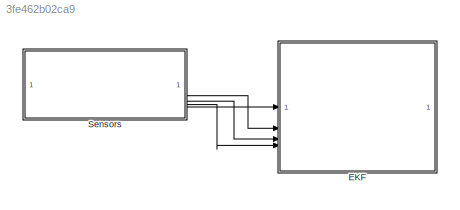
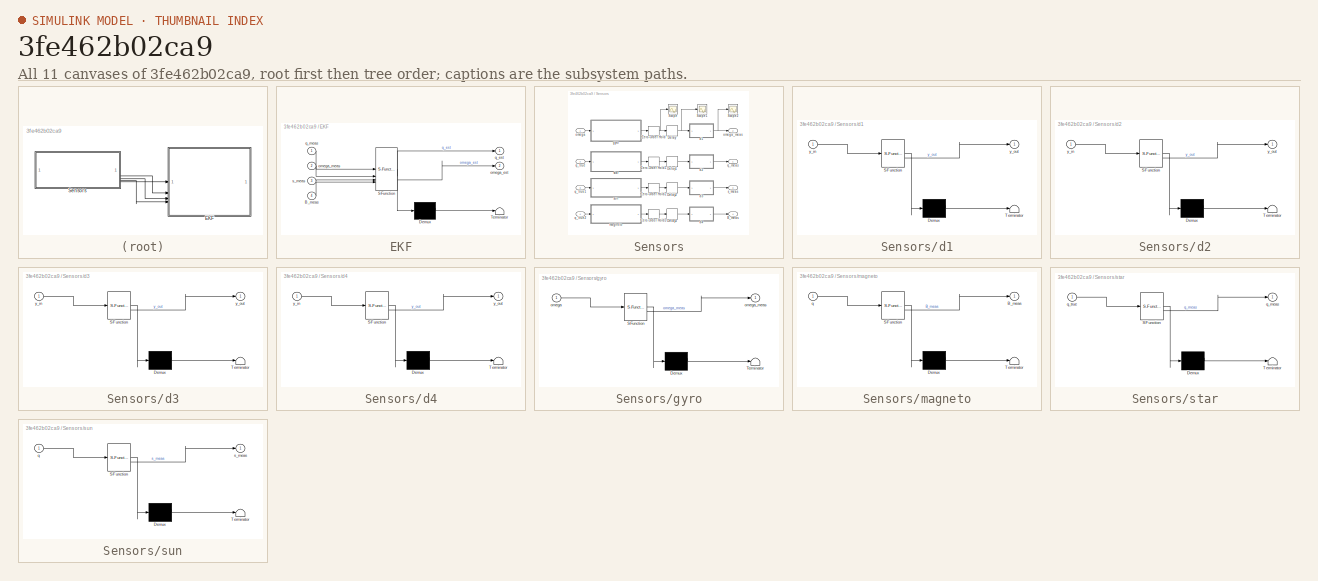
[diagram: thumbnail index - all 11 canvases of the model, root first then tree order]
MODEL slx_3fe462b02ca9
KIND model
CONFIG AbsTol = auto
CONFIG EnableMultiTasking = off
CONFIG FixedStep = auto
CONFIG MaxStep = auto
CONFIG MinStep = auto
CONFIG RelTol = 1e-3
CONFIG SampleTimeConstraint = Unconstrained
CONFIG SolverName = VariableStepAuto
CONFIG StartTime = 0.0
CONFIG StopTime = 10.0
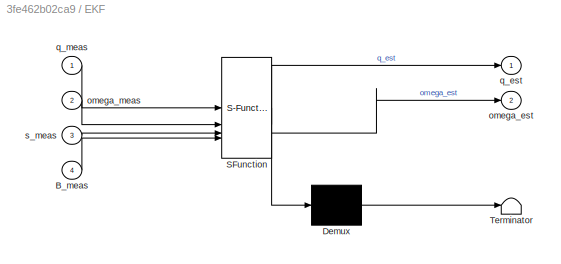
BLOCK [SubSystem] EKF
  ErrorFcn = Stateflow.Translate.translate
  PermitHierarchicalResolution = ExplicitOnly
  SFBlockType = MATLAB Function
  TreatAsAtomicUnit = on
BLOCK [Demux] EKF/ Demux 
  Outputs = 1
BLOCK [S-Function] EKF/ SFunction 
  EnableBusSupport = on
  FunctionName = sf_sfun
  PortCounts = [4 3]
  SFcnIsStateOwnerBlock = off
  SFunctionDeploymentMode = off
  Tag = Stateflow S-Function 13
BLOCK [Terminator] EKF/ Terminator 
BLOCK [Inport] EKF/B_meas
  Port = 4
BLOCK [Outport] EKF/omega_est
  Port = 2
BLOCK [Inport] EKF/omega_meas
  Port = 2
BLOCK [Outport] EKF/q_est
BLOCK [Inport] EKF/q_meas
BLOCK [Inport] EKF/s_meas
  Port = 3
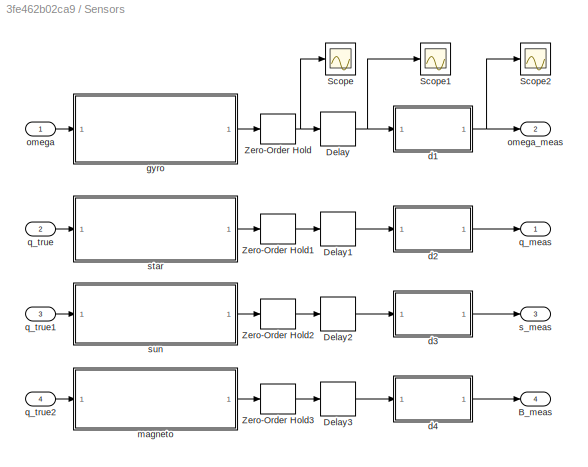
BLOCK [SubSystem] Sensors
BLOCK [Outport] Sensors/B_meas
  Port = 4
BLOCK [Delay] Sensors/Delay
  DelayLength = 1
  InitialCondition = 0
  InputPortMap = u0
  SampleTime = 0.05
BLOCK [Delay] Sensors/Delay1
  DelayLength = 1
  InitialCondition = 0
  InputPortMap = u0
  SampleTime = 0.05
BLOCK [Delay] Sensors/Delay2
  DelayLength = 1
  InitialCondition = 0
  InputPortMap = u0
  SampleTime = 0.05
BLOCK [Delay] Sensors/Delay3
  DelayLength = 1
  InitialCondition = 0
  InputPortMap = u0
  SampleTime = 0.05
BLOCK [Scope] Sensors/Scope
  Floating = off
  NumInputPorts = 1
  ScopeSpecificationString = Simulink.scopes.TimeScopeBlockCfg('CurrentConfiguration', extmgr.ConfigurationSet(extmgr.Configuration('Core','General UI',true),extmgr.Configuration('Core','Source UI',true),extmgr.Configuration('Sources','WiredSimulink',true,'DataLoggingVariableName','ScopeData8'),extmgr.Configuration('Visuals','Time Domain',true,'SerializedDisplays',{struct('MinYLimReal','-239897.09702','MaxYLimReal','26655.305...<+1494ch>
BLOCK [Scope] Sensors/Scope1
  Floating = off
  NumInputPorts = 1
  ScopeSpecificationString = Simulink.scopes.TimeScopeBlockCfg('CurrentConfiguration', extmgr.ConfigurationSet(extmgr.Configuration('Core','General UI',true),extmgr.Configuration('Core','Source UI',true),extmgr.Configuration('Sources','WiredSimulink',true,'DataLoggingVariableName','ScopeData9'),extmgr.Configuration('Visuals','Time Domain',true,'SerializedDisplays',{struct('MinYLimReal','-239897.09702','MaxYLimReal','26655.305...<+1499ch>
BLOCK [Scope] Sensors/Scope2
  Floating = off
  NumInputPorts = 1
  ScopeSpecificationString = Simulink.scopes.TimeScopeBlockCfg('CurrentConfiguration', extmgr.ConfigurationSet(extmgr.Configuration('Core','General UI',true),extmgr.Configuration('Core','Source UI',true),extmgr.Configuration('Sources','WiredSimulink',true,'DataLoggingVariableName','ScopeData10'),extmgr.Configuration('Visuals','Time Domain',true,'SerializedDisplays',{struct('MinYLimReal','-239897.09702','MaxYLimReal','26655.30...<+1456ch>
BLOCK [ZeroOrderHold] Sensors/Zero-Order Hold
  SampleTime = 0.1
BLOCK [ZeroOrderHold] Sensors/Zero-Order Hold1
  SampleTime = -1
BLOCK [ZeroOrderHold] Sensors/Zero-Order Hold2
  SampleTime = -1
BLOCK [ZeroOrderHold] Sensors/Zero-Order Hold3
  SampleTime = -1
BLOCK [SubSystem] Sensors/d1
  ErrorFcn = Stateflow.Translate.translate
  PermitHierarchicalResolution = ExplicitOnly
  SFBlockType = MATLAB Function
  TreatAsAtomicUnit = on
BLOCK [Demux] Sensors/d1/ Demux 
  Outputs = 1
BLOCK [S-Function] Sensors/d1/ SFunction 
  EnableBusSupport = on
  FunctionName = sf_sfun
  PortCounts = [1 2]
  SFcnIsStateOwnerBlock = off
  SFunctionDeploymentMode = off
  Tag = Stateflow S-Function 9
BLOCK [Terminator] Sensors/d1/ Terminator 
BLOCK [Inport] Sensors/d1/y_in
BLOCK [Outport] Sensors/d1/y_out
BLOCK [SubSystem] Sensors/d2
  ErrorFcn = Stateflow.Translate.translate
  PermitHierarchicalResolution = ExplicitOnly
  SFBlockType = MATLAB Function
  TreatAsAtomicUnit = on
BLOCK [Demux] Sensors/d2/ Demux 
  Outputs = 1
BLOCK [S-Function] Sensors/d2/ SFunction 
  EnableBusSupport = on
  FunctionName = sf_sfun
  PortCounts = [1 2]
  SFcnIsStateOwnerBlock = off
  SFunctionDeploymentMode = off
  Tag = Stateflow S-Function 10
BLOCK [Terminator] Sensors/d2/ Terminator 
BLOCK [Inport] Sensors/d2/y_in
BLOCK [Outport] Sensors/d2/y_out
BLOCK [SubSystem] Sensors/d3
  ErrorFcn = Stateflow.Translate.translate
  PermitHierarchicalResolution = ExplicitOnly
  SFBlockType = MATLAB Function
  TreatAsAtomicUnit = on
BLOCK [Demux] Sensors/d3/ Demux 
  Outputs = 1
BLOCK [S-Function] Sensors/d3/ SFunction 
  EnableBusSupport = on
  FunctionName = sf_sfun
  PortCounts = [1 2]
  SFcnIsStateOwnerBlock = off
  SFunctionDeploymentMode = off
  Tag = Stateflow S-Function 14
BLOCK [Terminator] Sensors/d3/ Terminator 
BLOCK [Inport] Sensors/d3/y_in
BLOCK [Outport] Sensors/d3/y_out
BLOCK [SubSystem] Sensors/d4
  ErrorFcn = Stateflow.Translate.translate
  PermitHierarchicalResolution = ExplicitOnly
  SFBlockType = MATLAB Function
  TreatAsAtomicUnit = on
BLOCK [Demux] Sensors/d4/ Demux 
  Outputs = 1
BLOCK [S-Function] Sensors/d4/ SFunction 
  EnableBusSupport = on
  FunctionName = sf_sfun
  PortCounts = [1 2]
  SFcnIsStateOwnerBlock = off
  SFunctionDeploymentMode = off
  Tag = Stateflow S-Function 15
BLOCK [Terminator] Sensors/d4/ Terminator 
BLOCK [Inport] Sensors/d4/y_in
BLOCK [Outport] Sensors/d4/y_out
BLOCK [SubSystem] Sensors/gyro
  ErrorFcn = Stateflow.Translate.translate
  PermitHierarchicalResolution = ExplicitOnly
  SFBlockType = MATLAB Function
  TreatAsAtomicUnit = on
BLOCK [Demux] Sensors/gyro/ Demux 
  Outputs = 1
BLOCK [S-Function] Sensors/gyro/ SFunction 
  EnableBusSupport = on
  FunctionName = sf_sfun
  PortCounts = [1 2]
  SFcnIsStateOwnerBlock = off
  SFunctionDeploymentMode = off
  Tag = Stateflow S-Function 7
BLOCK [Terminator] Sensors/gyro/ Terminator 
BLOCK [Inport] Sensors/gyro/omega
BLOCK [Outport] Sensors/gyro/omega_meas
BLOCK [SubSystem] Sensors/magneto
  ErrorFcn = Stateflow.Translate.translate
  PermitHierarchicalResolution = ExplicitOnly
  SFBlockType = MATLAB Function
  TreatAsAtomicUnit = on
BLOCK [Demux] Sensors/magneto/ Demux 
  Outputs = 1
BLOCK [S-Function] Sensors/magneto/ SFunction 
  EnableBusSupport = on
  FunctionName = sf_sfun
  PortCounts = [1 2]
  SFcnIsStateOwnerBlock = off
  SFunctionDeploymentMode = off
  Tag = Stateflow S-Function 12
BLOCK [Terminator] Sensors/magneto/ Terminator 
BLOCK [Outport] Sensors/magneto/B_meas
BLOCK [Inport] Sensors/magneto/q
BLOCK [Inport] Sensors/omega
BLOCK [Outport] Sensors/omega_meas
  Port = 2
BLOCK [Outport] Sensors/q_meas
BLOCK [Inport] Sensors/q_true
  Port = 2
BLOCK [Inport] Sensors/q_true1
  Port = 3
BLOCK [Inport] Sensors/q_true2
  Port = 4
BLOCK [Outport] Sensors/s_meas
  Port = 3
BLOCK [SubSystem] Sensors/star
  ErrorFcn = Stateflow.Translate.translate
  PermitHierarchicalResolution = ExplicitOnly
  SFBlockType = MATLAB Function
  TreatAsAtomicUnit = on
BLOCK [Demux] Sensors/star/ Demux 
  Outputs = 1
BLOCK [S-Function] Sensors/star/ SFunction 
  EnableBusSupport = on
  FunctionName = sf_sfun
  PortCounts = [1 2]
  SFcnIsStateOwnerBlock = off
  SFunctionDeploymentMode = off
  Tag = Stateflow S-Function 8
BLOCK [Terminator] Sensors/star/ Terminator 
BLOCK [Outport] Sensors/star/q_meas
BLOCK [Inport] Sensors/star/q_true
BLOCK [SubSystem] Sensors/sun
  ErrorFcn = Stateflow.Translate.translate
  PermitHierarchicalResolution = ExplicitOnly
  SFBlockType = MATLAB Function
  TreatAsAtomicUnit = on
BLOCK [Demux] Sensors/sun/ Demux 
  Outputs = 1
BLOCK [S-Function] Sensors/sun/ SFunction 
  EnableBusSupport = on
  FunctionName = sf_sfun
  PortCounts = [1 2]
  SFcnIsStateOwnerBlock = off
  SFunctionDeploymentMode = off
  Tag = Stateflow S-Function 11
BLOCK [Terminator] Sensors/sun/ Terminator 
BLOCK [Inport] Sensors/sun/q
BLOCK [Outport] Sensors/sun/s_meas
LINE Sensors/Delay1:1 -> Sensors/d2:1
LINE Sensors/Delay2:1 -> Sensors/d3:1
LINE Sensors/Delay3:1 -> Sensors/d4:1
NET Sensors/Delay:1 -> Sensors/Scope1:1, Sensors/d1:1
LINE Sensors/Zero-Order Hold1:1 -> Sensors/Delay1:1
LINE Sensors/Zero-Order Hold2:1 -> Sensors/Delay2:1
LINE Sensors/Zero-Order Hold3:1 -> Sensors/Delay3:1
NET Sensors/Zero-Order Hold:1 -> Sensors/Delay:1, Sensors/Scope:1
NET Sensors/d1:1 -> Sensors/Scope2:1, Sensors/omega_meas:1
LINE Sensors/d2:1 -> Sensors/q_meas:1
LINE Sensors/d3:1 -> Sensors/s_meas:1
LINE Sensors/d4:1 -> Sensors/B_meas:1
LINE Sensors/gyro:1 -> Sensors/Zero-Order Hold:1
LINE Sensors/magneto:1 -> Sensors/Zero-Order Hold3:1
LINE Sensors/omega:1 -> Sensors/gyro:1
LINE Sensors/q_true1:1 -> Sensors/sun:1
LINE Sensors/q_true2:1 -> Sensors/magneto:1
LINE Sensors/q_true:1 -> Sensors/star:1
LINE Sensors/star:1 -> Sensors/Zero-Order Hold1:1
LINE Sensors/sun:1 -> Sensors/Zero-Order Hold2:1
LINE Sensors:1 -> EKF:1
LINE Sensors:2 -> EKF:2
LINE Sensors:3 -> EKF:3
LINE Sensors:4 -> EKF:4
note: NET lines group one-source signal fan-out (src -> all destinations, sorted); 1:1 wires keep LINE
CHART Sensors/gyro states=1 transitions=1
  STATE_LABEL 'eML_blk_kernel()'
  STATE_LABEL 'SCRIPT:\nfunction omega_meas = gyro_sensor(omega)\n% Simple gyroscope with bias and Gaussian noise\nbias = [0.0005; -0.0003; 0.0004];     % Constant bias (rad/s)\nnoise_std = 0.001;                    % Noise std dev (rad/s)\n\nomega_meas = omega + bias + noise_std * randn(3,1);\nend\n'
CHART Sensors/star states=1 transitions=1
  STATE_LABEL 'eML_blk_kernel()'
  STATE_LABEL 'SCRIPT:\nfunction q_meas = star_tracker(q_true)\n% Star tracker with small attitude noise\nnoise_std = 0.002;\n\nq_meas = q_true + noise_std * randn(4,1);\nq_meas = q_meas / norm(q_meas);  % Normalize to unit quaternion\nend\n'
CHART Sensors/d1 states=1 transitions=1
  STATE_LABEL 'eML_blk_kernel()'
  STATE_LABEL 'SCRIPT:\nfunction y_out = dropout(y_in)\n% Simulate dropout with 2% chance\nif rand < 0.02\n    y_out = zeros(size(y_in));  % Lost reading\nelse\n    y_out = y_in;\nend\nend\n'
CHART Sensors/d2 states=1 transitions=1
  STATE_LABEL 'eML_blk_kernel()'
  STATE_LABEL 'SCRIPT:\nfunction y_out = dropout(y_in)\n% Simulate dropout with 2% chance\nif rand < 0.02\n    y_out = zeros(size(y_in));  % Lost reading\nelse\n    y_out = y_in;\nend\nend\n'
CHART Sensors/sun states=1 transitions=1
  STATE_LABEL 'eML_blk_kernel()'
  STATE_LABEL "SCRIPT:\nfunction s_meas = sun_sensor(q)\n% Constants\ns_inertial = [-1; 0; 0];           % Sun vector in inertial frame (unit vector)\nnoise_std = 0.01;                  % Sun sensor noise\n\n% Convert quaternion to rotation matrix\nq0 = q(1); qv = q(2:4);\nq_cross = [    0   -qv(3)  qv(2);\n            qv(3)     0   -qv(1);\n           -qv(2)  qv(1)     0 ];\nR = (q0^2 - qv' * qv) * eye(3) + 2 * (qv * qv')...<+143ch>"
CHART Sensors/magneto states=1 transitions=1
  STATE_LABEL 'eML_blk_kernel()'
  STATE_LABEL "SCRIPT:\nfunction B_meas = magnetometer(q)\n% Constants\nB_inertial = [0.2; -0.3; 0.4];     % Earth's magnetic field in inertial frame (μT)\nnoise_std = 0.01;                  % Magnetometer noise\n\n% Convert quaternion to rotation matrix\nq0 = q(1); qv = q(2:4);\nq_cross = [    0   -qv(3)  qv(2);\n            qv(3)     0   -qv(1);\n           -qv(2)  qv(1)     0 ];\nR = (q0^2 - qv' * qv) * eye(3) + 2 * (qv...<+161ch>"
CHART EKF states=1 transitions=1
  STATE_LABEL 'eML_blk_kernel()'
  STATE_LABEL 'SCRIPT:\nfunction [q_est, omega_est] = attitude_ekf(q_meas, omega_meas, s_meas, B_meas)\n\n% ======= Input Guards =======\nif isempty(q_meas) || norm(q_meas) == 0 || any(isnan(q_meas))\n    q_meas = [1; 0; 0; 0];  % fallback to identity quaternion\nend\n\nif isempty(omega_meas) || any(isnan(omega_meas))\n    omega_meas = [0; 0; 0];\nend\n\n% ======= Persistent Variables =======\npersistent x P\ndt = 0.01;\n\nif i...<+1299ch>'
CHART Sensors/d3 states=1 transitions=1
  STATE_LABEL 'eML_blk_kernel()'
  STATE_LABEL 'SCRIPT:\nfunction y_out = dropout(y_in)\n% Simulate dropout with 2% chance\nif rand < 0.02\n    y_out = zeros(size(y_in));  % Lost reading\nelse\n    y_out = y_in;\nend\nend\n'
CHART Sensors/d4 states=1 transitions=1
  STATE_LABEL 'eML_blk_kernel()'
  STATE_LABEL 'SCRIPT:\nfunction y_out = dropout(y_in)\n% Simulate dropout with 2% chance\nif rand < 0.02\n    y_out = zeros(size(y_in));  % Lost reading\nelse\n    y_out = y_in;\nend\nend\n'
CHART  states=0 transitions=0
CHART  states=0 transitions=0
CHART  states=0 transitions=0
CHART  states=0 transitions=0
CHART  states=0 transitions=0
CHART  states=0 transitions=0
CHART  states=0 transitions=0
CHART  states=0 transitions=0
CHART  states=0 transitions=0
